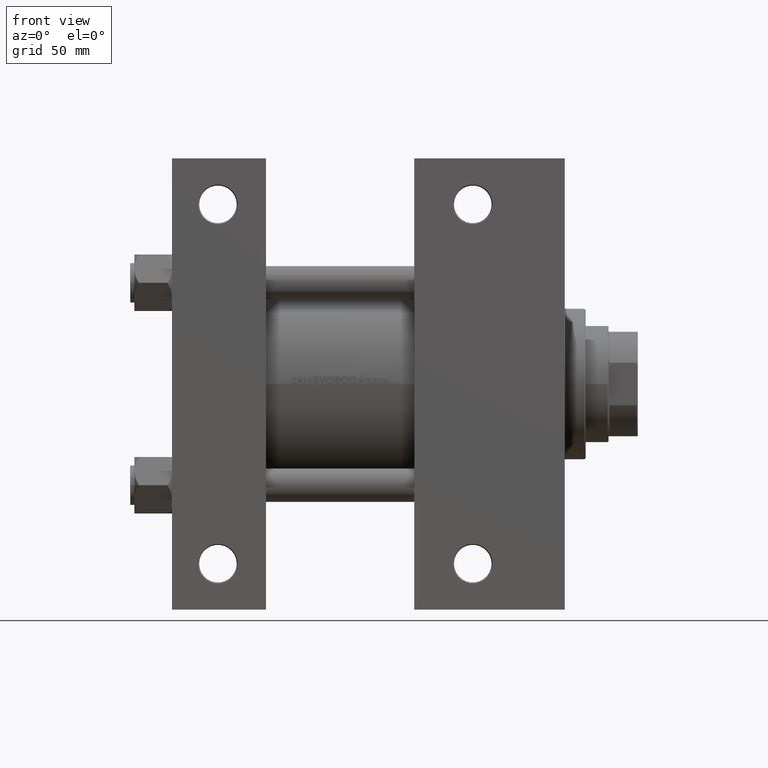
[diagram: clean part render]
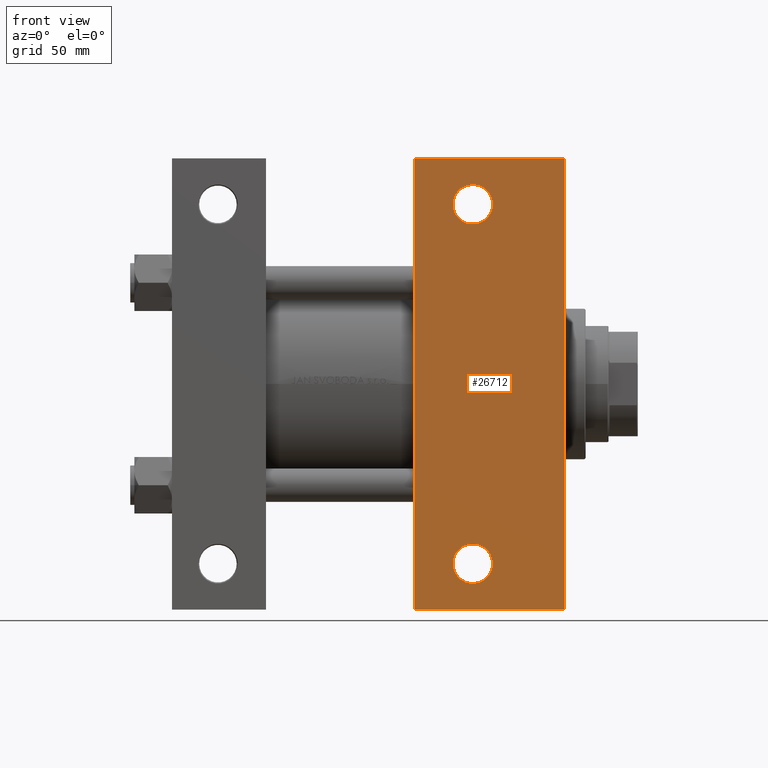
[diagram: same view with one face highlighted and labeled with its STEP entity id]
A machine part, front view. The second image highlights one B-rep face of the part: STEP entity #26712.
In plain terms, the highlighted planar face has unit normal (0, -1, -0).
Its self-contained STEP definition (entity closure, byte-faithful):
#519 = CARTESIAN_POINT ( 'NONE',  ( 188.0000000000000000, 65.00000000000002842, -64.99999999999998579 ) ) ;
#2828 = CIRCLE ( 'NONE', #23006, 9.499499999999800437 ) ;
#3092 = CARTESIAN_POINT ( 'NONE',  ( 187.9999999999999432, -107.9999999999999716, -65.00000000000000000 ) ) ;
#3177 = ORIENTED_EDGE ( 'NONE', *, *, #39237, .T. ) ;
#6915 = DIRECTION ( 'NONE',  ( 0.000000000000000000, 1.000000000000000000, 0.000000000000000000 ) ) ;
#8048 = DIRECTION ( 'NONE',  ( 0.000000000000000000, -1.000000000000000000, -2.135044278125300850E-16 ) ) ;
#8177 = VECTOR ( 'NONE', #33114, 1000.000000000000000 ) ;
#8712 = AXIS2_PLACEMENT_3D ( 'NONE', #32184, #36074, #6915 ) ;
#8726 = LINE ( 'NONE', #38367, #22669 ) ;
#10556 = LINE ( 'NONE', #21258, #8177 ) ;
#11782 = AXIS2_PLACEMENT_3D ( 'NONE', #519, #44024, #36719 ) ;
#12704 = EDGE_CURVE ( 'NONE', #35750, #33124, #20335, .T. ) ;
#13131 = EDGE_CURVE ( 'NONE', #17402, #29714, #8726, .T. ) ;
#15381 = EDGE_LOOP ( 'NONE', ( #32096, #16840, #24153, #17481 ) ) ;
#15981 = DIRECTION ( 'NONE',  ( 0.000000000000000000, 1.000000000000000000, 0.000000000000000000 ) ) ;
#16052 = EDGE_CURVE ( 'NONE', #37388, #35872, #26247, .T. ) ;
#16247 = DIRECTION ( 'NONE',  ( 0.000000000000000000, -1.000000000000000000, -2.135044278125300850E-16 ) ) ;
#16840 = ORIENTED_EDGE ( 'NONE', *, *, #45613, .T. ) ;
#16859 = VECTOR ( 'NONE', #47488, 1000.000000000000000 ) ;
#17402 = VERTEX_POINT ( 'NONE', #23386 ) ;
#17481 = ORIENTED_EDGE ( 'NONE', *, *, #39823, .T. ) ;
#19275 = CARTESIAN_POINT ( 'NONE',  ( 144.0000000000000284, 86.00000000000000000, -64.99999999999998579 ) ) ;
#20335 = CIRCLE ( 'NONE', #8712, 9.499499999999938993 ) ;
#20448 = DIRECTION ( 'NONE',  ( -0.000000000000000000, -2.135044278125300850E-16, 1.000000000000000000 ) ) ;
#21258 = CARTESIAN_POINT ( 'NONE',  ( 115.9999999999999716, -107.9999999999999716, -65.00000000000000000 ) ) ;
#21671 = PLANE ( 'NONE',  #11782 ) ;
#21910 = FACE_BOUND ( 'NONE', #29018, .T. ) ;
#22669 = VECTOR ( 'NONE', #16247, 1000.000000000000000 ) ;
#23006 = AXIS2_PLACEMENT_3D ( 'NONE', #19275, #29946, #44311 ) ;
#23386 = CARTESIAN_POINT ( 'NONE',  ( 187.9999999999999716, 107.9999999999999716, -65.00000000000000000 ) ) ;
#23582 = CARTESIAN_POINT ( 'NONE',  ( 153.4994999999999550, -86.00000000000000000, -65.00000000000001421 ) ) ;
#24153 = ORIENTED_EDGE ( 'NONE', *, *, #13131, .T. ) ;
#24542 = ORIENTED_EDGE ( 'NONE', *, *, #30153, .T. ) ;
#25228 = ORIENTED_EDGE ( 'NONE', *, *, #12704, .T. ) ;
#26247 = LINE ( 'NONE', #41073, #43365 ) ;
#26285 = LINE ( 'NONE', #44761, #16859 ) ;
#26712 = ADVANCED_FACE ( 'NONE', ( #21910, #29660, #33547 ), #21671, .T. ) ;
#27911 = VERTEX_POINT ( 'NONE', #39051 ) ;
#29018 = EDGE_LOOP ( 'NONE', ( #3177, #45781 ) ) ;
#29660 = FACE_BOUND ( 'NONE', #42823, .T. ) ;
#29714 = VERTEX_POINT ( 'NONE', #3092 ) ;
#29946 = DIRECTION ( 'NONE',  ( -0.000000000000000000, -2.135044278125300850E-16, 1.000000000000000000 ) ) ;
#30153 = EDGE_CURVE ( 'NONE', #33124, #35750, #30502, .T. ) ;
#30502 = CIRCLE ( 'NONE', #34362, 9.499499999999938993 ) ;
#32096 = ORIENTED_EDGE ( 'NONE', *, *, #16052, .F. ) ;
#32184 = CARTESIAN_POINT ( 'NONE',  ( 144.0000000000000284, -86.00000000000000000, -65.00000000000001421 ) ) ;
#32971 = AXIS2_PLACEMENT_3D ( 'NONE', #34939, #34449, #15981 ) ;
#33114 = DIRECTION ( 'NONE',  ( -1.000000000000000000, -0.000000000000000000, -0.000000000000000000 ) ) ;
#33124 = VERTEX_POINT ( 'NONE', #45050 ) ;
#33547 = FACE_OUTER_BOUND ( 'NONE', #15381, .T. ) ;
#33743 = CIRCLE ( 'NONE', #32971, 9.499499999999800437 ) ;
#34362 = AXIS2_PLACEMENT_3D ( 'NONE', #42557, #20448, #35734 ) ;
#34449 = DIRECTION ( 'NONE',  ( -0.000000000000000000, -2.135044278125300850E-16, 1.000000000000000000 ) ) ;
#34939 = CARTESIAN_POINT ( 'NONE',  ( 144.0000000000000284, 86.00000000000000000, -64.99999999999998579 ) ) ;
#35302 = CARTESIAN_POINT ( 'NONE',  ( 134.5005000000002156, 86.00000000000000000, -64.99999999999998579 ) ) ;
#35734 = DIRECTION ( 'NONE',  ( 0.000000000000000000, 1.000000000000000000, 0.000000000000000000 ) ) ;
#35750 = VERTEX_POINT ( 'NONE', #23582 ) ;
#35872 = VERTEX_POINT ( 'NONE', #35942 ) ;
#35942 = CARTESIAN_POINT ( 'NONE',  ( 115.9999999999999716, -107.9999999999999716, -65.00000000000000000 ) ) ;
#36074 = DIRECTION ( 'NONE',  ( -0.000000000000000000, -2.135044278125300850E-16, 1.000000000000000000 ) ) ;
#36719 = DIRECTION ( 'NONE',  ( 0.000000000000000000, 1.000000000000000000, 2.135044278125300850E-16 ) ) ;
#37388 = VERTEX_POINT ( 'NONE', #40672 ) ;
#38367 = CARTESIAN_POINT ( 'NONE',  ( 188.0000000000000000, 65.00000000000002842, -64.99999999999998579 ) ) ;
#39051 = CARTESIAN_POINT ( 'NONE',  ( 153.4994999999998129, 86.00000000000000000, -64.99999999999998579 ) ) ;
#39237 = EDGE_CURVE ( 'NONE', #42733, #27911, #33743, .T. ) ;
#39823 = EDGE_CURVE ( 'NONE', #29714, #35872, #10556, .T. ) ;
#40672 = CARTESIAN_POINT ( 'NONE',  ( 116.0000000000000000, 108.0000000000000000, -65.00000000000000000 ) ) ;
#41073 = CARTESIAN_POINT ( 'NONE',  ( 115.9999999999999858, 65.00000000000002842, -64.99999999999998579 ) ) ;
#42557 = CARTESIAN_POINT ( 'NONE',  ( 144.0000000000000284, -86.00000000000000000, -65.00000000000001421 ) ) ;
#42626 = EDGE_CURVE ( 'NONE', #27911, #42733, #2828, .T. ) ;
#42733 = VERTEX_POINT ( 'NONE', #35302 ) ;
#42823 = EDGE_LOOP ( 'NONE', ( #24542, #25228 ) ) ;
#43365 = VECTOR ( 'NONE', #8048, 1000.000000000000000 ) ;
#44024 = DIRECTION ( 'NONE',  ( 0.000000000000000000, 2.135044278125300850E-16, -1.000000000000000000 ) ) ;
#44311 = DIRECTION ( 'NONE',  ( 0.000000000000000000, 1.000000000000000000, 0.000000000000000000 ) ) ;
#44761 = CARTESIAN_POINT ( 'NONE',  ( 116.0000000000000000, 108.0000000000000000, -65.00000000000000000 ) ) ;
#45050 = CARTESIAN_POINT ( 'NONE',  ( 134.5005000000000734, -86.00000000000000000, -65.00000000000001421 ) ) ;
#45613 = EDGE_CURVE ( 'NONE', #37388, #17402, #26285, .T. ) ;
#45781 = ORIENTED_EDGE ( 'NONE', *, *, #42626, .T. ) ;
#47488 = DIRECTION ( 'NONE',  ( 1.000000000000000000, -3.854941057726239576E-16, 0.000000000000000000 ) ) ;